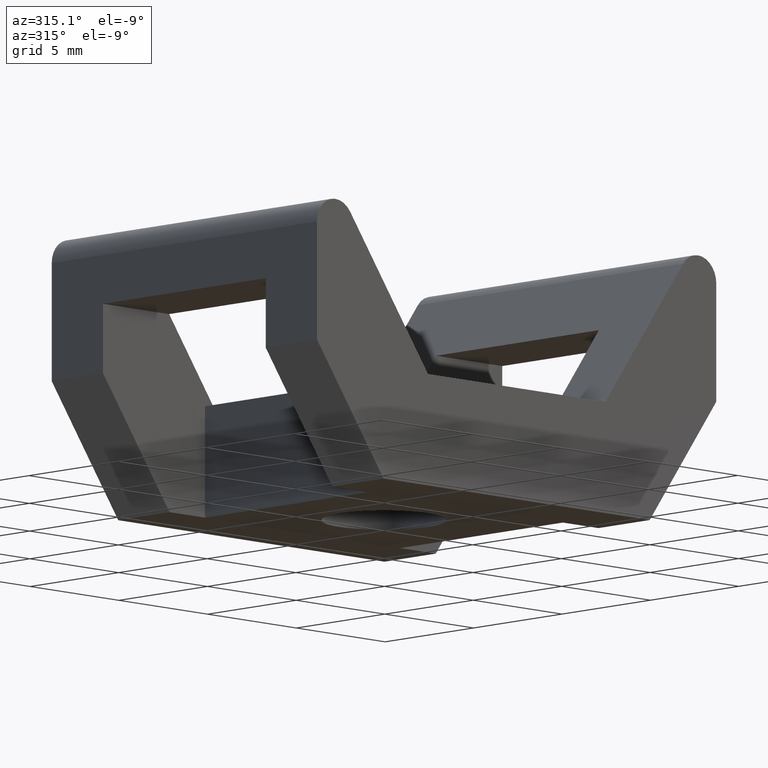
[diagram: clean part render]
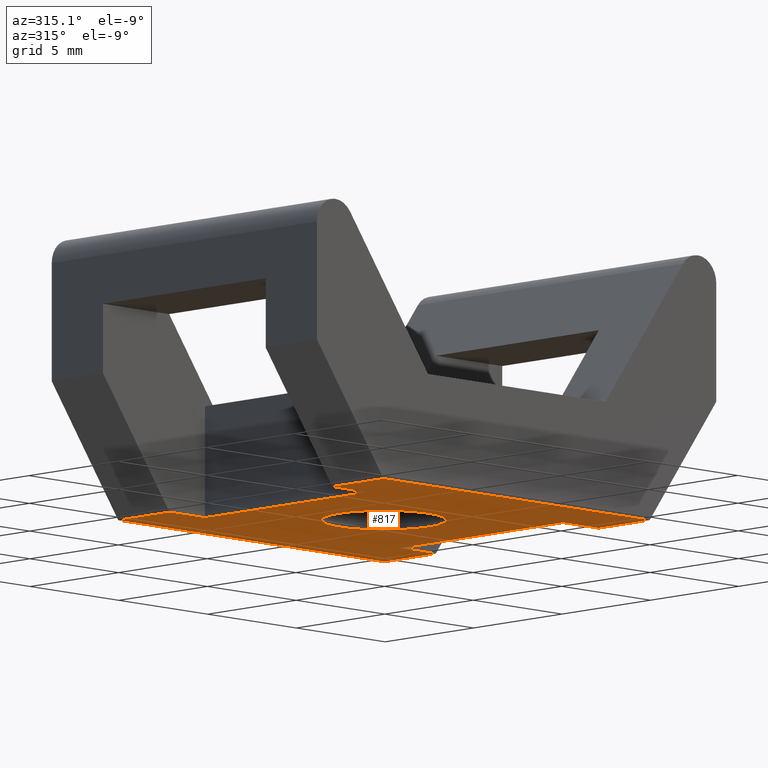
[diagram: same view with one face highlighted and labeled with its STEP entity id]
A machine part, auxiliary view. The second image highlights one B-rep face of the part: STEP entity #817.
In plain terms, the highlighted planar face has unit normal (-0, 0, -1).
Its self-contained STEP definition (entity closure, byte-faithful):
#9 = ORIENTED_EDGE ( 'NONE', *, *, #251, .T. ) ;
#20 = VECTOR ( 'NONE', #737, 1000.000000000000000 ) ;
#27 = CARTESIAN_POINT ( 'NONE',  ( -7.500000000000000000, 7.500000000000002700, 3.321799189091548800E-015 ) ) ;
#29 = LINE ( 'NONE', #316, #220 ) ;
#38 = LINE ( 'NONE', #909, #741 ) ;
#40 = VECTOR ( 'NONE', #124, 1000.000000000000000 ) ;
#42 = CARTESIAN_POINT ( 'NONE',  ( -5.500000000000000000, 4.599999999999999600, 3.061616997868379900E-015 ) ) ;
#58 = ORIENTED_EDGE ( 'NONE', *, *, #275, .T. ) ;
#61 = EDGE_CURVE ( 'NONE', #294, #484, #347, .T. ) ;
#63 = DIRECTION ( 'NONE',  ( 1.000000000000000000, 0.0000000000000000000, 0.0000000000000000000 ) ) ;
#68 = EDGE_LOOP ( 'NONE', ( #99, #483, #787, #239, #338, #9, #871, #373, #800, #902, #58, #873 ) ) ;
#89 = DIRECTION ( 'NONE',  ( 0.0000000000000000000, 1.000000000000000000, 0.0000000000000000000 ) ) ;
#91 = DIRECTION ( 'NONE',  ( -3.061616997868380200E-016, 0.0000000000000000000, -1.000000000000000000 ) ) ;
#99 = ORIENTED_EDGE ( 'NONE', *, *, #277, .T. ) ;
#112 = VERTEX_POINT ( 'NONE', #418 ) ;
#124 = DIRECTION ( 'NONE',  ( -0.0000000000000000000, -1.000000000000000000, -0.0000000000000000000 ) ) ;
#136 = DIRECTION ( 'NONE',  ( 0.0000000000000000000, 1.000000000000000000, 0.0000000000000000000 ) ) ;
#147 = DIRECTION ( 'NONE',  ( 0.0000000000000000000, 0.0000000000000000000, 1.000000000000000000 ) ) ;
#165 = PLANE ( 'NONE',  #911 ) ;
#177 = DIRECTION ( 'NONE',  ( -1.000000000000000000, 0.0000000000000000000, 3.061616997868380200E-016 ) ) ;
#190 = CARTESIAN_POINT ( 'NONE',  ( -2.500000000000000000, 3.061616997868383100E-016, 0.0000000000000000000 ) ) ;
#194 = EDGE_CURVE ( 'NONE', #1078, #1038, #29, .T. ) ;
#196 = LINE ( 'NONE', #740, #20 ) ;
#218 = EDGE_CURVE ( 'NONE', #112, #1059, #289, .T. ) ;
#220 = VECTOR ( 'NONE', #987, 1000.000000000000000 ) ;
#235 = LINE ( 'NONE', #579, #691 ) ;
#239 = ORIENTED_EDGE ( 'NONE', *, *, #274, .T. ) ;
#246 = CARTESIAN_POINT ( 'NONE',  ( -7.500000000000000000, 0.0000000000000000000, 3.673940397442054400E-015 ) ) ;
#251 = EDGE_CURVE ( 'NONE', #1038, #1070, #235, .T. ) ;
#255 = VECTOR ( 'NONE', #177, 1000.000000000000000 ) ;
#262 = DIRECTION ( 'NONE',  ( 0.0000000000000000000, 0.0000000000000000000, 1.000000000000000000 ) ) ;
#264 = EDGE_CURVE ( 'NONE', #813, #619, #38, .T. ) ;
#268 = CIRCLE ( 'NONE', #423, 2.500000000000000000 ) ;
#274 = EDGE_CURVE ( 'NONE', #615, #1078, #574, .T. ) ;
#275 = EDGE_CURVE ( 'NONE', #375, #294, #196, .T. ) ;
#277 = EDGE_CURVE ( 'NONE', #484, #527, #438, .T. ) ;
#281 = VECTOR ( 'NONE', #405, 1000.000000000000000 ) ;
#289 = CIRCLE ( 'NONE', #751, 2.500000000000000000 ) ;
#294 = VERTEX_POINT ( 'NONE', #595 ) ;
#295 = CARTESIAN_POINT ( 'NONE',  ( -5.500000000000000000, -4.599999999999999600, 3.367778697655219700E-015 ) ) ;
#301 = CARTESIAN_POINT ( 'NONE',  ( 7.500000000000000000, 0.0000000000000000000, -9.184850993605149900E-016 ) ) ;
#314 = DIRECTION ( 'NONE',  ( 1.000000000000000000, -0.0000000000000000000, -3.061616997868380200E-016 ) ) ;
#316 = CARTESIAN_POINT ( 'NONE',  ( 7.500000000000000000, 7.500000000000000000, -9.184850993605149900E-016 ) ) ;
#338 = ORIENTED_EDGE ( 'NONE', *, *, #194, .T. ) ;
#342 = EDGE_CURVE ( 'NONE', #635, #615, #525, .T. ) ;
#343 = CARTESIAN_POINT ( 'NONE',  ( 5.500000000000000000, -4.599999999999999600, -3.061616997868375300E-016 ) ) ;
#347 = LINE ( 'NONE', #246, #448 ) ;
#351 = ORIENTED_EDGE ( 'NONE', *, *, #218, .T. ) ;
#359 = FACE_BOUND ( 'NONE', #499, .T. ) ;
#373 = ORIENTED_EDGE ( 'NONE', *, *, #1093, .T. ) ;
#375 = VERTEX_POINT ( 'NONE', #687 ) ;
#405 = DIRECTION ( 'NONE',  ( 1.000000000000000000, -0.0000000000000000000, -3.061616997868380200E-016 ) ) ;
#418 = CARTESIAN_POINT ( 'NONE',  ( 2.500000000000000000, 0.0000000000000000000, 0.0000000000000000000 ) ) ;
#423 = AXIS2_PLACEMENT_3D ( 'NONE', #770, #262, #928 ) ;
#438 = LINE ( 'NONE', #920, #281 ) ;
#448 = VECTOR ( 'NONE', #89, 1000.000000000000000 ) ;
#462 = CARTESIAN_POINT ( 'NONE',  ( -7.500000000000000900, 4.600000000000001400, 2.878664562899133700E-015 ) ) ;
#480 = LINE ( 'NONE', #864, #255 ) ;
#483 = ORIENTED_EDGE ( 'NONE', *, *, #1005, .T. ) ;
#484 = VERTEX_POINT ( 'NONE', #803 ) ;
#486 = EDGE_CURVE ( 'NONE', #1070, #957, #480, .T. ) ;
#490 = CARTESIAN_POINT ( 'NONE',  ( -7.500000000000000000, 0.0000000000000000000, 3.673940397442054400E-015 ) ) ;
#497 = LINE ( 'NONE', #712, #40 ) ;
#499 = EDGE_LOOP ( 'NONE', ( #351, #696 ) ) ;
#525 = LINE ( 'NONE', #1020, #599 ) ;
#527 = VERTEX_POINT ( 'NONE', #295 ) ;
#562 = VECTOR ( 'NONE', #636, 1000.000000000000000 ) ;
#574 = LINE ( 'NONE', #490, #773 ) ;
#579 = CARTESIAN_POINT ( 'NONE',  ( 7.500000000000000000, 0.0000000000000000000, -9.184850993605149900E-016 ) ) ;
#595 = CARTESIAN_POINT ( 'NONE',  ( -7.499999999999998200, -7.500000000000000900, 2.824873556341609300E-015 ) ) ;
#599 = VECTOR ( 'NONE', #674, 1000.000000000000000 ) ;
#609 = CARTESIAN_POINT ( 'NONE',  ( -5.500000000000000000, 0.0000000000000000000, 3.061616997868378700E-015 ) ) ;
#615 = VERTEX_POINT ( 'NONE', #462 ) ;
#619 = VERTEX_POINT ( 'NONE', #725 ) ;
#635 = VERTEX_POINT ( 'NONE', #42 ) ;
#636 = DIRECTION ( 'NONE',  ( -0.0000000000000000000, -1.000000000000000000, -0.0000000000000000000 ) ) ;
#643 = EDGE_CURVE ( 'NONE', #619, #375, #789, .T. ) ;
#658 = CARTESIAN_POINT ( 'NONE',  ( 0.0000000000000000000, 0.0000000000000000000, 0.0000000000000000000 ) ) ;
#674 = DIRECTION ( 'NONE',  ( -1.000000000000000000, 0.0000000000000000000, 3.061616997868380200E-016 ) ) ;
#687 = CARTESIAN_POINT ( 'NONE',  ( 7.500000000000000900, -7.500000000000000000, 8.155590145824205900E-016 ) ) ;
#691 = VECTOR ( 'NONE', #996, 1000.000000000000000 ) ;
#696 = ORIENTED_EDGE ( 'NONE', *, *, #951, .T. ) ;
#712 = CARTESIAN_POINT ( 'NONE',  ( 5.500000000000000000, 0.0000000000000000000, -3.061616997868389600E-016 ) ) ;
#725 = CARTESIAN_POINT ( 'NONE',  ( 7.499999999999998200, -4.600000000000001400, -4.592425496802575000E-016 ) ) ;
#732 = FACE_OUTER_BOUND ( 'NONE', #68, .T. ) ;
#737 = DIRECTION ( 'NONE',  ( -1.000000000000000000, 0.0000000000000000000, 3.061616997868380200E-016 ) ) ;
#740 = CARTESIAN_POINT ( 'NONE',  ( 7.500000000000000000, -7.500000000000000000, -9.184850993605149900E-016 ) ) ;
#741 = VECTOR ( 'NONE', #314, 1000.000000000000000 ) ;
#751 = AXIS2_PLACEMENT_3D ( 'NONE', #658, #147, #63 ) ;
#767 = DIRECTION ( 'NONE',  ( -1.000000000000000000, 0.0000000000000000000, 3.061616997868380200E-016 ) ) ;
#770 = CARTESIAN_POINT ( 'NONE',  ( 0.0000000000000000000, 0.0000000000000000000, 0.0000000000000000000 ) ) ;
#773 = VECTOR ( 'NONE', #136, 1000.000000000000000 ) ;
#787 = ORIENTED_EDGE ( 'NONE', *, *, #342, .T. ) ;
#789 = LINE ( 'NONE', #301, #562 ) ;
#790 = DIRECTION ( 'NONE',  ( 0.0000000000000000000, 1.000000000000000000, 0.0000000000000000000 ) ) ;
#800 = ORIENTED_EDGE ( 'NONE', *, *, #264, .T. ) ;
#803 = CARTESIAN_POINT ( 'NONE',  ( -7.500000000000000000, -4.600000000000001400, 3.455781087026155000E-015 ) ) ;
#813 = VERTEX_POINT ( 'NONE', #343 ) ;
#817 = ADVANCED_FACE ( 'NONE', ( #359, #732 ), #165, .T. ) ;
#825 = VECTOR ( 'NONE', #790, 1000.000000000000000 ) ;
#861 = CARTESIAN_POINT ( 'NONE',  ( 7.500000000000000000, 0.0000000000000000000, -9.184850993605149900E-016 ) ) ;
#864 = CARTESIAN_POINT ( 'NONE',  ( 7.500000000000000000, 4.599999999999999600, -9.184850993605149900E-016 ) ) ;
#869 = CARTESIAN_POINT ( 'NONE',  ( 7.500000000000000900, 7.500000000000000900, 1.598697729521606500E-015 ) ) ;
#871 = ORIENTED_EDGE ( 'NONE', *, *, #486, .T. ) ;
#873 = ORIENTED_EDGE ( 'NONE', *, *, #61, .T. ) ;
#902 = ORIENTED_EDGE ( 'NONE', *, *, #643, .T. ) ;
#909 = CARTESIAN_POINT ( 'NONE',  ( 7.500000000000000000, -4.599999999999999600, -9.184850993605149900E-016 ) ) ;
#911 = AXIS2_PLACEMENT_3D ( 'NONE', #861, #91, #767 ) ;
#920 = CARTESIAN_POINT ( 'NONE',  ( 7.500000000000000000, -4.599999999999999600, -9.184850993605149900E-016 ) ) ;
#928 = DIRECTION ( 'NONE',  ( 1.000000000000000000, 0.0000000000000000000, 0.0000000000000000000 ) ) ;
#940 = CARTESIAN_POINT ( 'NONE',  ( 5.500000000000000000, 4.599999999999999600, -6.123233995736760400E-016 ) ) ;
#951 = EDGE_CURVE ( 'NONE', #1059, #112, #268, .T. ) ;
#957 = VERTEX_POINT ( 'NONE', #940 ) ;
#987 = DIRECTION ( 'NONE',  ( 1.000000000000000000, -0.0000000000000000000, -3.061616997868380200E-016 ) ) ;
#994 = LINE ( 'NONE', #609, #825 ) ;
#996 = DIRECTION ( 'NONE',  ( -0.0000000000000000000, -1.000000000000000000, -0.0000000000000000000 ) ) ;
#1005 = EDGE_CURVE ( 'NONE', #527, #635, #994, .T. ) ;
#1020 = CARTESIAN_POINT ( 'NONE',  ( 7.500000000000000000, 4.599999999999999600, -9.184850993605149900E-016 ) ) ;
#1038 = VERTEX_POINT ( 'NONE', #869 ) ;
#1039 = CARTESIAN_POINT ( 'NONE',  ( 7.499999999999998200, 4.600000000000001400, 5.229298257282105500E-016 ) ) ;
#1059 = VERTEX_POINT ( 'NONE', #190 ) ;
#1070 = VERTEX_POINT ( 'NONE', #1039 ) ;
#1078 = VERTEX_POINT ( 'NONE', #27 ) ;
#1093 = EDGE_CURVE ( 'NONE', #957, #813, #497, .T. ) ;